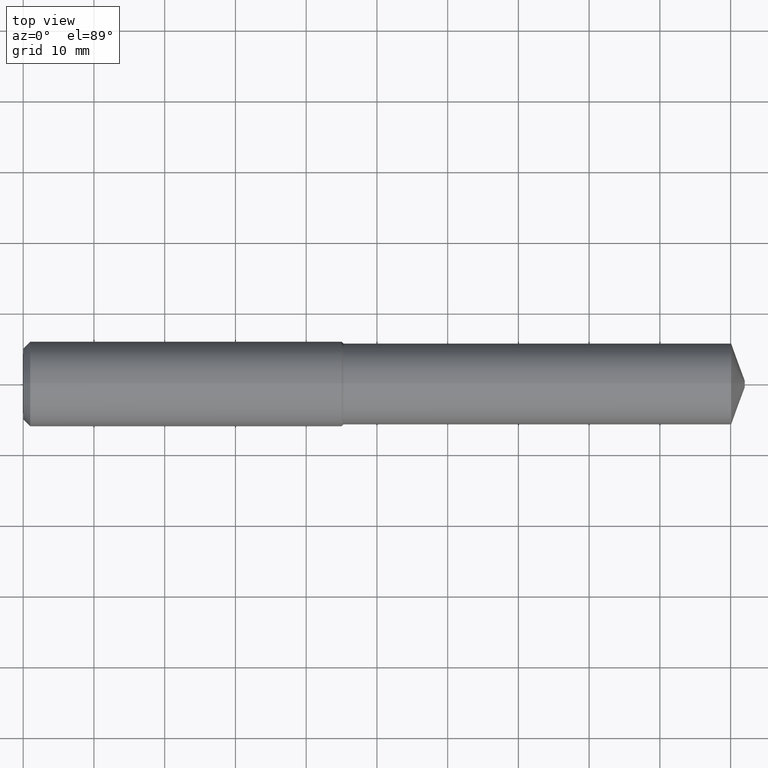
[diagram: clean part render]
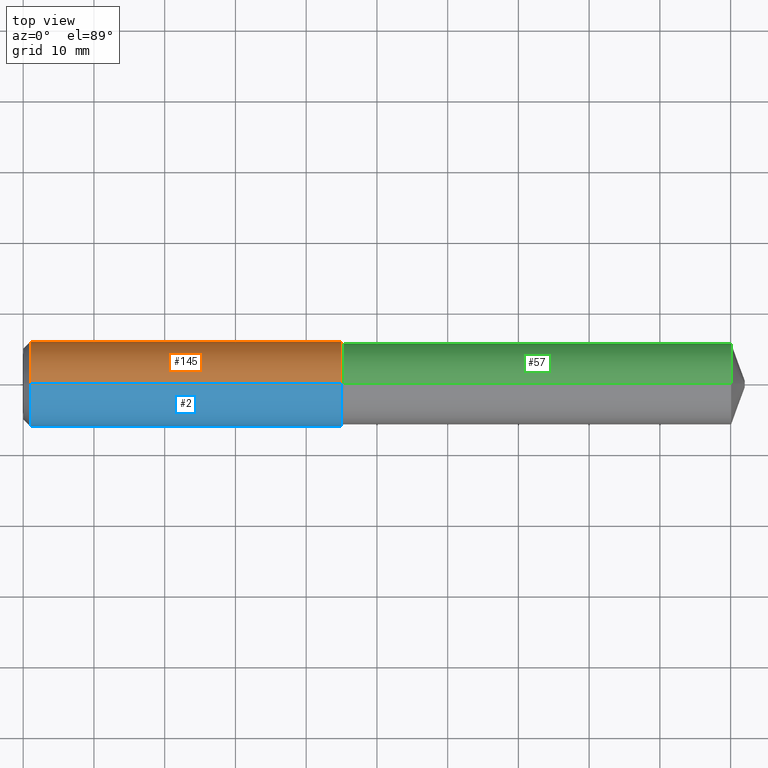
[diagram: same view with three faces highlighted in distinct colors, each labeled with its STEP entity id]
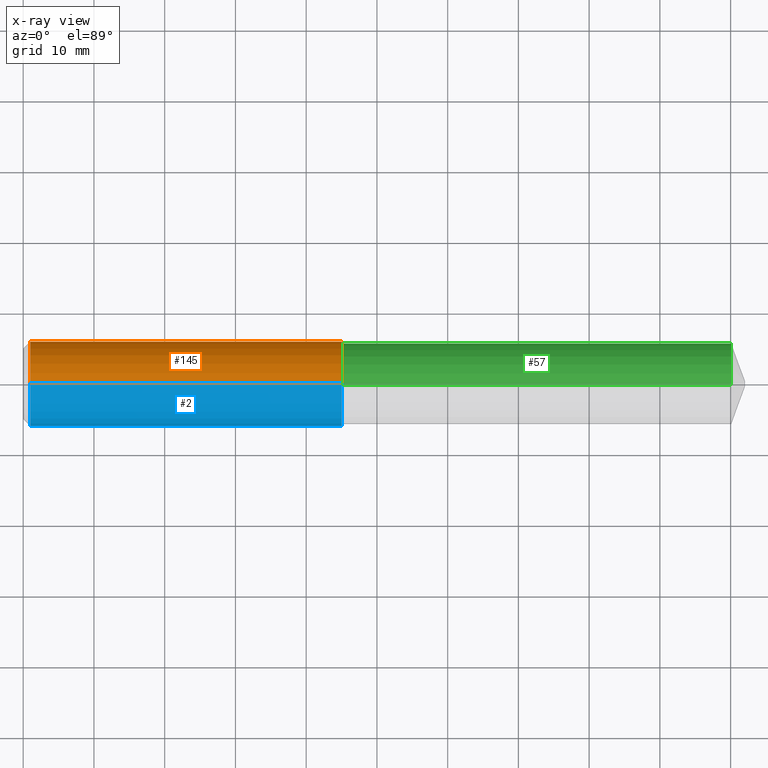
[diagram: x-ray of the same camera — body ghosted, the three highlighted faces saturated]
A machine part, top view with three faces highlighted in distinct colors.
The next image is the same camera in x-ray (body ghosted, the three faces saturated) — at least one of them is partly hidden behind the body in this view.
Their STEP definitions:

[orange] entity #145 — the highlighted cylindrical surface (partial cylindrical patch) has radius 6 mm, axis along (1, -0, -0).
#3 = CARTESIAN_POINT ( 'NONE',  ( -0.03808593750000075634, 2.892866454678788763E-17, 0.2362204724409450174 ) ) ;
#7 = CARTESIAN_POINT ( 'NONE',  ( 0.03937007874015747977, 2.892866454678788147E-17, 0.2362204724409449619 ) ) ;
#17 = EDGE_CURVE ( 'NONE', #210, #298, #220, .T. ) ;
#39 = VECTOR ( 'NONE', #51, 39.37007874015748143 ) ;
#47 = CARTESIAN_POINT ( 'NONE',  ( 0.03937007874015747977, 0.000000000000000000, 0.000000000000000000 ) ) ;
#51 = DIRECTION ( 'NONE',  ( 1.000000000000000000, -0.000000000000000000, -0.000000000000000000 ) ) ;
#52 = DIRECTION ( 'NONE',  ( 0.000000000000000000, 0.000000000000000000, -1.000000000000000000 ) ) ;
#80 = CARTESIAN_POINT ( 'NONE',  ( 1.771653543307086576, 0.000000000000000000, 0.2362204724409451007 ) ) ;
#86 = FACE_OUTER_BOUND ( 'NONE', #329, .T. ) ;
#107 = EDGE_CURVE ( 'NONE', #152, #158, #201, .T. ) ;
#122 = DIRECTION ( 'NONE',  ( 0.000000000000000000, 0.000000000000000000, -1.000000000000000000 ) ) ;
#126 = AXIS2_PLACEMENT_3D ( 'NONE', #377, #251, #162 ) ;
#128 = DIRECTION ( 'NONE',  ( 1.000000000000000000, -0.000000000000000000, -0.000000000000000000 ) ) ;
#133 = VECTOR ( 'NONE', #185, 39.37007874015748143 ) ;
#145 = ADVANCED_FACE ( 'NONE', ( #86 ), #309, .T. ) ;
#152 = VERTEX_POINT ( 'NONE', #189 ) ;
#158 = VERTEX_POINT ( 'NONE', #80 ) ;
#161 = CARTESIAN_POINT ( 'NONE',  ( 1.771653543307086576, 0.000000000000000000, 0.000000000000000000 ) ) ;
#162 = DIRECTION ( 'NONE',  ( 0.000000000000000000, 0.000000000000000000, -1.000000000000000000 ) ) ;
#168 = CARTESIAN_POINT ( 'NONE',  ( 0.03937007874015747977, 0.000000000000000000, -0.2362204724409449619 ) ) ;
#172 = EDGE_CURVE ( 'NONE', #210, #152, #190, .T. ) ;
#185 = DIRECTION ( 'NONE',  ( 1.000000000000000000, -0.000000000000000000, -0.000000000000000000 ) ) ;
#187 = ORIENTED_EDGE ( 'NONE', *, *, #17, .T. ) ;
#189 = CARTESIAN_POINT ( 'NONE',  ( 1.771653543307086576, 2.892866454678789996E-17, -0.2362204724409451007 ) ) ;
#190 = LINE ( 'NONE', #258, #39 ) ;
#201 = CIRCLE ( 'NONE', #322, 0.2362204724409451007 ) ;
#210 = VERTEX_POINT ( 'NONE', #168 ) ;
#220 = CIRCLE ( 'NONE', #284, 0.2362204724409449619 ) ;
#251 = DIRECTION ( 'NONE',  ( 1.000000000000000000, -0.000000000000000000, -0.000000000000000000 ) ) ;
#258 = CARTESIAN_POINT ( 'NONE',  ( -0.03808593750000075634, 0.000000000000000000, -0.2362204724409450174 ) ) ;
#260 = LINE ( 'NONE', #3, #133 ) ;
#264 = ORIENTED_EDGE ( 'NONE', *, *, #287, .T. ) ;
#284 = AXIS2_PLACEMENT_3D ( 'NONE', #47, #128, #122 ) ;
#287 = EDGE_CURVE ( 'NONE', #298, #158, #260, .T. ) ;
#298 = VERTEX_POINT ( 'NONE', #7 ) ;
#305 = ORIENTED_EDGE ( 'NONE', *, *, #107, .F. ) ;
#309 = CYLINDRICAL_SURFACE ( 'NONE', #126, 0.2362204724409450174 ) ;
#313 = DIRECTION ( 'NONE',  ( 1.000000000000000000, -0.000000000000000000, -0.000000000000000000 ) ) ;
#322 = AXIS2_PLACEMENT_3D ( 'NONE', #161, #313, #52 ) ;
#329 = EDGE_LOOP ( 'NONE', ( #187, #264, #305, #370 ) ) ;
#370 = ORIENTED_EDGE ( 'NONE', *, *, #172, .F. ) ;
#377 = CARTESIAN_POINT ( 'NONE',  ( -0.03808593750000075634, 0.000000000000000000, 0.000000000000000000 ) ) ;

[blue] entity #2 — the highlighted cylindrical surface (partial cylindrical patch) has radius 6 mm, axis along (1, -0, -0).
#2 = ADVANCED_FACE ( 'NONE', ( #90 ), #323, .T. ) ;
#3 = CARTESIAN_POINT ( 'NONE',  ( -0.03808593750000075634, 2.892866454678788763E-17, 0.2362204724409450174 ) ) ;
#7 = CARTESIAN_POINT ( 'NONE',  ( 0.03937007874015747977, 2.892866454678788147E-17, 0.2362204724409449619 ) ) ;
#38 = ORIENTED_EDGE ( 'NONE', *, *, #287, .F. ) ;
#39 = VECTOR ( 'NONE', #51, 39.37007874015748143 ) ;
#51 = DIRECTION ( 'NONE',  ( 1.000000000000000000, -0.000000000000000000, -0.000000000000000000 ) ) ;
#63 = CARTESIAN_POINT ( 'NONE',  ( -0.03808593750000075634, 0.000000000000000000, 0.000000000000000000 ) ) ;
#73 = ORIENTED_EDGE ( 'NONE', *, *, #272, .F. ) ;
#80 = CARTESIAN_POINT ( 'NONE',  ( 1.771653543307086576, 0.000000000000000000, 0.2362204724409451007 ) ) ;
#82 = EDGE_CURVE ( 'NONE', #298, #210, #262, .T. ) ;
#88 = CIRCLE ( 'NONE', #302, 0.2362204724409451007 ) ;
#90 = FACE_OUTER_BOUND ( 'NONE', #181, .T. ) ;
#119 = DIRECTION ( 'NONE',  ( 1.000000000000000000, -0.000000000000000000, -0.000000000000000000 ) ) ;
#133 = VECTOR ( 'NONE', #185, 39.37007874015748143 ) ;
#141 = DIRECTION ( 'NONE',  ( 1.000000000000000000, -0.000000000000000000, -0.000000000000000000 ) ) ;
#148 = DIRECTION ( 'NONE',  ( 1.000000000000000000, -0.000000000000000000, -0.000000000000000000 ) ) ;
#152 = VERTEX_POINT ( 'NONE', #189 ) ;
#158 = VERTEX_POINT ( 'NONE', #80 ) ;
#168 = CARTESIAN_POINT ( 'NONE',  ( 0.03937007874015747977, 0.000000000000000000, -0.2362204724409449619 ) ) ;
#172 = EDGE_CURVE ( 'NONE', #210, #152, #190, .T. ) ;
#177 = ORIENTED_EDGE ( 'NONE', *, *, #82, .T. ) ;
#181 = EDGE_LOOP ( 'NONE', ( #38, #177, #270, #73 ) ) ;
#185 = DIRECTION ( 'NONE',  ( 1.000000000000000000, -0.000000000000000000, -0.000000000000000000 ) ) ;
#189 = CARTESIAN_POINT ( 'NONE',  ( 1.771653543307086576, 2.892866454678789996E-17, -0.2362204724409451007 ) ) ;
#190 = LINE ( 'NONE', #258, #39 ) ;
#210 = VERTEX_POINT ( 'NONE', #168 ) ;
#218 = CARTESIAN_POINT ( 'NONE',  ( 0.03937007874015747977, 0.000000000000000000, 0.000000000000000000 ) ) ;
#258 = CARTESIAN_POINT ( 'NONE',  ( -0.03808593750000075634, 0.000000000000000000, -0.2362204724409450174 ) ) ;
#260 = LINE ( 'NONE', #3, #133 ) ;
#262 = CIRCLE ( 'NONE', #343, 0.2362204724409449619 ) ;
#265 = DIRECTION ( 'NONE',  ( 0.000000000000000000, 0.000000000000000000, -1.000000000000000000 ) ) ;
#270 = ORIENTED_EDGE ( 'NONE', *, *, #172, .T. ) ;
#272 = EDGE_CURVE ( 'NONE', #158, #152, #88, .T. ) ;
#287 = EDGE_CURVE ( 'NONE', #298, #158, #260, .T. ) ;
#290 = CARTESIAN_POINT ( 'NONE',  ( 1.771653543307086576, 0.000000000000000000, 0.000000000000000000 ) ) ;
#298 = VERTEX_POINT ( 'NONE', #7 ) ;
#302 = AXIS2_PLACEMENT_3D ( 'NONE', #290, #141, #352 ) ;
#323 = CYLINDRICAL_SURFACE ( 'NONE', #353, 0.2362204724409450174 ) ;
#341 = DIRECTION ( 'NONE',  ( 0.000000000000000000, 0.000000000000000000, -1.000000000000000000 ) ) ;
#343 = AXIS2_PLACEMENT_3D ( 'NONE', #218, #119, #341 ) ;
#352 = DIRECTION ( 'NONE',  ( 0.000000000000000000, 0.000000000000000000, -1.000000000000000000 ) ) ;
#353 = AXIS2_PLACEMENT_3D ( 'NONE', #63, #148, #265 ) ;

[green] entity #57 — the highlighted cylindrical surface (partial cylindrical patch) has radius 5.7404 mm, axis along (1, -0, -0).
#9 = VERTEX_POINT ( 'NONE', #125 ) ;
#31 = CARTESIAN_POINT ( 'NONE',  ( 1.781874015748031725, 2.767701766073021672E-17, 0.2260000000000002007 ) ) ;
#48 = DIRECTION ( 'NONE',  ( 1.000000000000000000, -0.000000000000000000, -0.000000000000000000 ) ) ;
#56 = CARTESIAN_POINT ( 'NONE',  ( 3.939860237651560126, 0.000000000000000000, 0.000000000000000000 ) ) ;
#57 = ADVANCED_FACE ( 'NONE', ( #178 ), #246, .T. ) ;
#61 = VECTOR ( 'NONE', #176, 39.37007874015748143 ) ;
#70 = VERTEX_POINT ( 'NONE', #98 ) ;
#74 = DIRECTION ( 'NONE',  ( 1.000000000000000000, -0.000000000000000000, -0.000000000000000000 ) ) ;
#84 = AXIS2_PLACEMENT_3D ( 'NONE', #373, #48, #136 ) ;
#87 = LINE ( 'NONE', #320, #336 ) ;
#98 = CARTESIAN_POINT ( 'NONE',  ( 3.939860237651560126, 0.000000000000000000, 0.2260000000000005060 ) ) ;
#115 = EDGE_CURVE ( 'NONE', #9, #261, #280, .T. ) ;
#124 = ORIENTED_EDGE ( 'NONE', *, *, #227, .F. ) ;
#125 = CARTESIAN_POINT ( 'NONE',  ( 1.781874015748031725, 0.000000000000000000, -0.2260000000000002007 ) ) ;
#131 = DIRECTION ( 'NONE',  ( 0.000000000000000000, 0.000000000000000000, -1.000000000000000000 ) ) ;
#136 = DIRECTION ( 'NONE',  ( 0.000000000000000000, 0.000000000000000000, -1.000000000000000000 ) ) ;
#139 = CIRCLE ( 'NONE', #349, 0.2260000000000004783 ) ;
#140 = LINE ( 'NONE', #266, #61 ) ;
#174 = ORIENTED_EDGE ( 'NONE', *, *, #371, .T. ) ;
#176 = DIRECTION ( 'NONE',  ( 1.000000000000000000, -0.000000000000000000, -0.000000000000000000 ) ) ;
#178 = FACE_OUTER_BOUND ( 'NONE', #238, .T. ) ;
#225 = AXIS2_PLACEMENT_3D ( 'NONE', #331, #74, #334 ) ;
#227 = EDGE_CURVE ( 'NONE', #278, #70, #139, .T. ) ;
#238 = EDGE_LOOP ( 'NONE', ( #273, #174, #124, #249 ) ) ;
#246 = CYLINDRICAL_SURFACE ( 'NONE', #225, 0.2260000000000003395 ) ;
#249 = ORIENTED_EDGE ( 'NONE', *, *, #316, .F. ) ;
#261 = VERTEX_POINT ( 'NONE', #31 ) ;
#263 = DIRECTION ( 'NONE',  ( 1.000000000000000000, -0.000000000000000000, -0.000000000000000000 ) ) ;
#266 = CARTESIAN_POINT ( 'NONE',  ( -0.03808593750000075634, 2.767701766073022289E-17, 0.2260000000000003395 ) ) ;
#273 = ORIENTED_EDGE ( 'NONE', *, *, #115, .T. ) ;
#278 = VERTEX_POINT ( 'NONE', #292 ) ;
#280 = CIRCLE ( 'NONE', #84, 0.2260000000000002007 ) ;
#289 = DIRECTION ( 'NONE',  ( 1.000000000000000000, -0.000000000000000000, -0.000000000000000000 ) ) ;
#292 = CARTESIAN_POINT ( 'NONE',  ( 3.939860237651560126, 2.767701766073025062E-17, -0.2260000000000005060 ) ) ;
#316 = EDGE_CURVE ( 'NONE', #9, #278, #87, .T. ) ;
#320 = CARTESIAN_POINT ( 'NONE',  ( -0.03808593750000075634, 0.000000000000000000, -0.2260000000000003395 ) ) ;
#331 = CARTESIAN_POINT ( 'NONE',  ( -0.03808593750000075634, 0.000000000000000000, 0.000000000000000000 ) ) ;
#334 = DIRECTION ( 'NONE',  ( 0.000000000000000000, 0.000000000000000000, -1.000000000000000000 ) ) ;
#336 = VECTOR ( 'NONE', #263, 39.37007874015748143 ) ;
#349 = AXIS2_PLACEMENT_3D ( 'NONE', #56, #289, #131 ) ;
#371 = EDGE_CURVE ( 'NONE', #261, #70, #140, .T. ) ;
#373 = CARTESIAN_POINT ( 'NONE',  ( 1.781874015748031725, 0.000000000000000000, 0.000000000000000000 ) ) ;